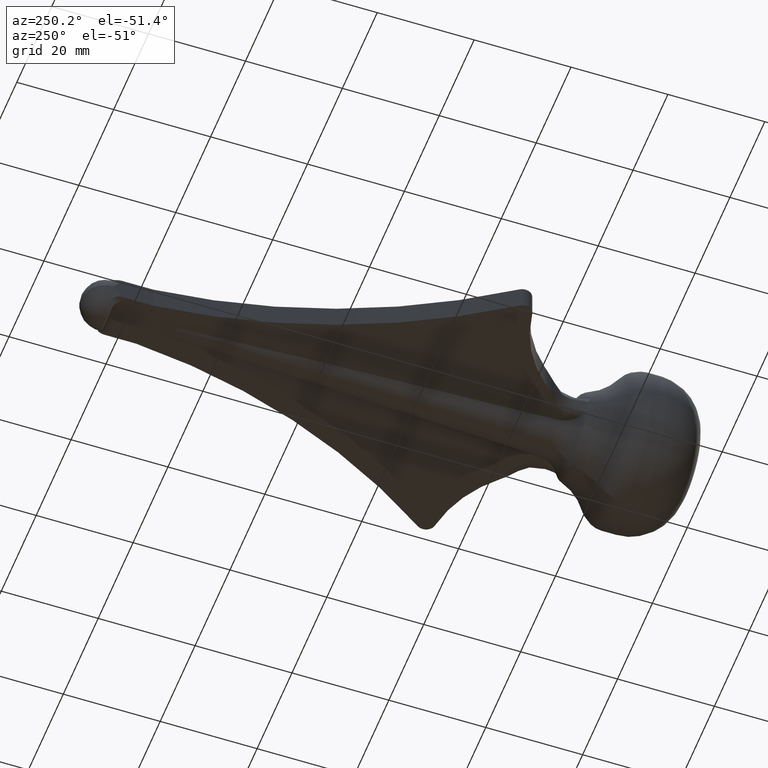
[diagram: clean part render]
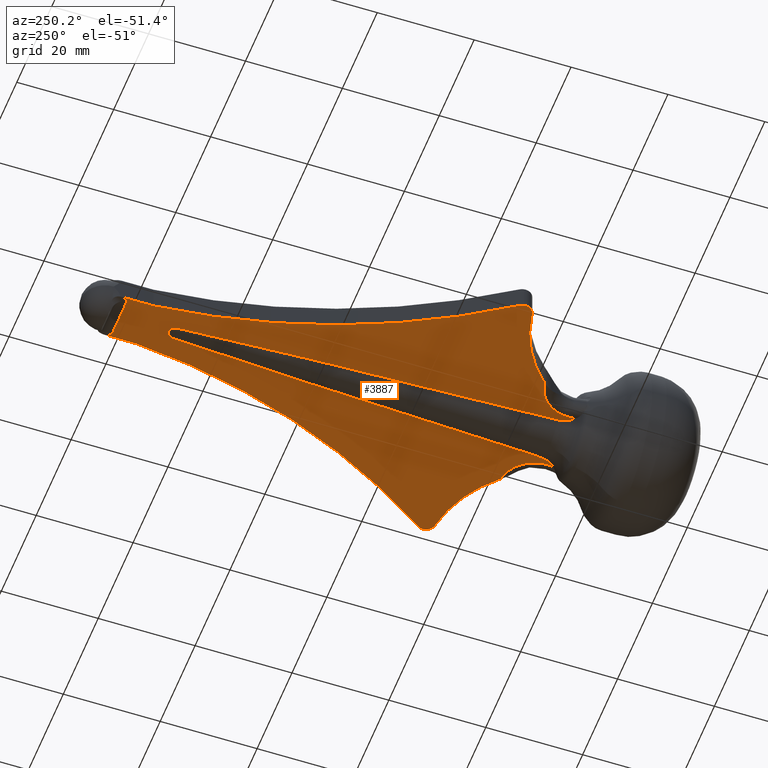
[diagram: same view with one face highlighted and labeled with its STEP entity id]
A machine part, auxiliary view. The second image highlights one B-rep face of the part: STEP entity #3887.
In plain terms, the highlighted planar face has unit normal (-0, 0, -1).
Its self-contained STEP definition (entity closure, byte-faithful):
#80 = CARTESIAN_POINT ( 'NONE',  ( -6.332124310859347500, 25.65280714459569800, -2.500000000000000000 ) ) ;
#113 = CIRCLE ( 'NONE', #5480, 26.00000000000000400 ) ;
#188 = LINE ( 'NONE', #8180, #2639 ) ;
#207 = CARTESIAN_POINT ( 'NONE',  ( -8.215327410691484600, 31.73765206968450800, -2.500000000000000400 ) ) ;
#211 = CARTESIAN_POINT ( 'NONE',  ( 8.538557114866950600, 32.06161470011271300, -2.500000000000000400 ) ) ;
#277 = CARTESIAN_POINT ( 'NONE',  ( 2.129360400867848800, 92.86874431668863400, -2.500000000000000000 ) ) ;
#289 = PLANE ( 'NONE',  #3214 ) ;
#306 = CARTESIAN_POINT ( 'NONE',  ( -0.6065527435157885800, 107.0000000000000600, -2.500000000000000000 ) ) ;
#307 = AXIS2_PLACEMENT_3D ( 'NONE', #5896, #454, #6804 ) ;
#327 = ORIENTED_EDGE ( 'NONE', *, *, #5783, .T. ) ;
#443 = ORIENTED_EDGE ( 'NONE', *, *, #4307, .T. ) ;
#454 = DIRECTION ( 'NONE',  ( 0.0000000000000000000, 0.0000000000000000000, 1.000000000000000000 ) ) ;
#498 = CARTESIAN_POINT ( 'NONE',  ( 0.9532144137066169700, 106.6340236943384700, -2.500000000000000000 ) ) ;
#522 = CARTESIAN_POINT ( 'NONE',  ( 5.225666838430490700, 27.09221010320965200, -2.500000000000000000 ) ) ;
#571 = CARTESIAN_POINT ( 'NONE',  ( 1.330671273816803600, 105.7173144408542200, -2.500000000000000000 ) ) ;
#591 = VERTEX_POINT ( 'NONE', #6103 ) ;
#646 = CARTESIAN_POINT ( 'NONE',  ( 5.000000000000000000, 118.2635083268962700, -2.500000000000000000 ) ) ;
#665 = CARTESIAN_POINT ( 'NONE',  ( -6.281358322798515900, 26.25225451194809500, -2.500000000000000000 ) ) ;
#687 = B_SPLINE_CURVE_WITH_KNOTS ( 'NONE', 3,
 ( #1793, #7216, #1869, #8208, #2811, #9042, #3722, #9862, #4646, #10686 ),
 .UNSPECIFIED., .F., .F.,
 ( 4, 2, 2, 2, 4 ),
 ( 0.0000000000000000000, 0.0008948846907809848000, 0.001789769381561969600, 0.002684654072342954400, 0.003579538763123939200 ),
 .UNSPECIFIED. ) ;
#731 = CARTESIAN_POINT ( 'NONE',  ( 31.75245864079045400, 16.33068541574359500, -2.500000000000000000 ) ) ;
#763 = CARTESIAN_POINT ( 'NONE',  ( -0.7927633571611382200, 106.8291361047447900, -2.500000000000000000 ) ) ;
#894 = DIRECTION ( 'NONE',  ( 0.0000000000000000000, 0.0000000000000000000, 1.000000000000000000 ) ) ;
#914 = EDGE_CURVE ( 'NONE', #7551, #10993, #1625, .T. ) ;
#922 = CARTESIAN_POINT ( 'NONE',  ( -6.370237441194999100, 25.35261430758427500, -2.500000000000000000 ) ) ;
#995 = CARTESIAN_POINT ( 'NONE',  ( -6.370237441194999100, 25.35261430758427500, -2.500000000000000000 ) ) ;
#1073 = DIRECTION ( 'NONE',  ( 0.0000000000000000000, 0.0000000000000000000, 1.000000000000000000 ) ) ;
#1111 = CARTESIAN_POINT ( 'NONE',  ( -9.070231445551900900, 32.50191980069816100, -2.500000000000000000 ) ) ;
#1154 = DIRECTION ( 'NONE',  ( -1.000000000000000000, -0.0000000000000000000, -0.0000000000000000000 ) ) ;
#1177 = CARTESIAN_POINT ( 'NONE',  ( 1.569177608762222200, 102.5082300580223100, -2.499999999999999100 ) ) ;
#1189 = DIRECTION ( 'NONE',  ( -0.0000000000000000000, 0.0000000000000000000, -1.000000000000000000 ) ) ;
#1220 = VERTEX_POINT ( 'NONE', #10289 ) ;
#1227 = B_SPLINE_CURVE_WITH_KNOTS ( 'NONE', 3,
 ( #7986, #8732, #8743, #7970, #7957, #8596, #8585, #8561, #8529, #8491 ),
 .UNSPECIFIED., .F., .F.,
 ( 4, 2, 2, 2, 4 ),
 ( 0.1646167444301771500, 0.1742068435375671000, 0.1837969426449570500, 0.2029771408597369800, 0.2413375372892968000 ),
 .UNSPECIFIED. ) ;
#1249 = B_SPLINE_CURVE_WITH_KNOTS ( 'NONE', 3,
 ( #5288, #763, #8006, #2615, #8869, #3519, #9694, #4449 ),
 .UNSPECIFIED., .F., .F.,
 ( 4, 2, 2, 4 ),
 ( -8.962579036644471900E-006, 0.0007492061159276327100, 0.001128290463409770700, 0.001507374810891909300 ),
 .UNSPECIFIED. ) ;
#1266 = CARTESIAN_POINT ( 'NONE',  ( 7.630893039179361500, 31.02927913251785700, -2.500000000000000000 ) ) ;
#1328 = VERTEX_POINT ( 'NONE', #10156 ) ;
#1371 = CARTESIAN_POINT ( 'NONE',  ( 0.6065527435157884700, 107.0000000000000600, -2.500000000000000000 ) ) ;
#1408 = CARTESIAN_POINT ( 'NONE',  ( 0.6987289277843280500, 106.9154205540190200, -2.500000000000000000 ) ) ;
#1427 = CARTESIAN_POINT ( 'NONE',  ( 4.983474586103638700, 27.95847719061229600, -2.500000000000000000 ) ) ;
#1453 = CARTESIAN_POINT ( 'NONE',  ( 6.281358322798517700, 26.25225451194809500, -2.500000000000000000 ) ) ;
#1531 = CARTESIAN_POINT ( 'NONE',  ( 0.0000000000000000000, 120.2000000000000000, -2.500000000000000000 ) ) ;
#1540 = CIRCLE ( 'NONE', #9784, 134.6797842850864700 ) ;
#1544 = VERTEX_POINT ( 'NONE', #8967 ) ;
#1597 = CIRCLE ( 'NONE', #7135, 26.00000000000000400 ) ;
#1611 = EDGE_CURVE ( 'NONE', #3009, #7323, #1227, .T. ) ;
#1612 = EDGE_CURVE ( 'NONE', #1544, #10993, #8672, .T. ) ;
#1614 = CIRCLE ( 'NONE', #6923, 5.361902647381809200 ) ;
#1622 = ORIENTED_EDGE ( 'NONE', *, *, #3696, .T. ) ;
#1625 = CIRCLE ( 'NONE', #3620, 2.000000000000026200 ) ;
#1645 = DIRECTION ( 'NONE',  ( 1.000000000000000000, 0.0000000000000000000, 0.0000000000000000000 ) ) ;
#1793 = CARTESIAN_POINT ( 'NONE',  ( -4.928568551160204000, 28.56293012340829000, -2.500000000000000000 ) ) ;
#1818 = DIRECTION ( 'NONE',  ( -1.057758217059028900E-016, -1.000000000000000000, 0.0000000000000000000 ) ) ;
#1839 = AXIS2_PLACEMENT_3D ( 'NONE', #6340, #894, #7242 ) ;
#1840 = CARTESIAN_POINT ( 'NONE',  ( -6.260372654401300500, 27.17393342071864000, -2.499999999999999600 ) ) ;
#1869 = CARTESIAN_POINT ( 'NONE',  ( -4.982672710096673000, 27.96408312401186400, -2.500000000000000400 ) ) ;
#1891 = ORIENTED_EDGE ( 'NONE', *, *, #3838, .T. ) ;
#1922 = CARTESIAN_POINT ( 'NONE',  ( -6.302561753250834000, 25.95268486088754800, -2.500000000000000000 ) ) ;
#2045 = CARTESIAN_POINT ( 'NONE',  ( -9.638519150057733900, 32.90100792267363500, -2.499999999999999600 ) ) ;
#2082 = CARTESIAN_POINT ( 'NONE',  ( 4.928568551160204000, 28.56293012340829000, -2.500000000000000000 ) ) ;
#2157 = AXIS2_PLACEMENT_3D ( 'NONE', #8391, #8383, #8360 ) ;
#2204 = CARTESIAN_POINT ( 'NONE',  ( 6.929805277812873100, 29.83665226423488500, -2.499999999999999600 ) ) ;
#2288 = CARTESIAN_POINT ( 'NONE',  ( -31.75245864079045400, 16.33068541574359500, -2.500000000000000000 ) ) ;
#2304 = EDGE_CURVE ( 'NONE', #4250, #9102, #11178, .T. ) ;
#2308 = CARTESIAN_POINT ( 'NONE',  ( 1.295279880000380000, 105.9668175679883900, -2.499999999999999100 ) ) ;
#2331 = CARTESIAN_POINT ( 'NONE',  ( 6.160589640754883700, 25.56479582156226400, -2.499999999999999600 ) ) ;
#2369 = CARTESIAN_POINT ( 'NONE',  ( 4.928568551160204000, 28.56293012340829000, -2.500000000000000000 ) ) ;
#2410 = ORIENTED_EDGE ( 'NONE', *, *, #11101, .T. ) ;
#2414 = EDGE_CURVE ( 'NONE', #4235, #8254, #1614, .T. ) ;
#2469 = ORIENTED_EDGE ( 'NONE', *, *, #8849, .F. ) ;
#2471 = DIRECTION ( 'NONE',  ( -1.000000000000000000, 0.0000000000000000000, 0.0000000000000000000 ) ) ;
#2615 = CARTESIAN_POINT ( 'NONE',  ( -1.159133566433652400, 106.3194813006999900, -2.499999999999999600 ) ) ;
#2639 = VECTOR ( 'NONE', #2790, 1000.000000000000000 ) ;
#2654 = EDGE_CURVE ( 'NONE', #8517, #5427, #11325, .T. ) ;
#2709 = EDGE_CURVE ( 'NONE', #8669, #2827, #10859, .T. ) ;
#2790 = DIRECTION ( 'NONE',  ( 1.057758217059028900E-016, -1.000000000000000000, 0.0000000000000000000 ) ) ;
#2811 = CARTESIAN_POINT ( 'NONE',  ( -5.223297721913593400, 27.09784092470094000, -2.500000000000000000 ) ) ;
#2827 = VERTEX_POINT ( 'NONE', #665 ) ;
#2941 = CARTESIAN_POINT ( 'NONE',  ( -6.380134862032538700, 28.08176899091009200, -2.500000000000000000 ) ) ;
#2942 = CARTESIAN_POINT ( 'NONE',  ( 11.73855710430954400, 33.81632774207560700, -2.500000000000000000 ) ) ;
#2972 = CARTESIAN_POINT ( 'NONE',  ( -10.43694916120694300, 33.35085489305667700, -2.500000000000000400 ) ) ;
#3009 = VERTEX_POINT ( 'NONE', #5520 ) ;
#3070 = B_SPLINE_CURVE_WITH_KNOTS ( 'NONE', 3,
 ( #5579, #6492, #2942, #9165, #3863, #9986, #4784, #10810, #5664, #211, #6574, #1266, #7606, #2204, #8510, #3115, #9330, #4053, #10153, #4951, #10975, #5840 ),
 .UNSPECIFIED., .F., .F.,
 ( 4, 2, 2, 2, 2, 2, 2, 2, 2, 2, 4 ),
 ( 0.0000000000000000000, 0.001387412077368245500, 0.002774824154736490900, 0.003468530193420620700, 0.004162236232104750900, 0.005549648309473014800, 0.006937060386841277000, 0.008324472464209540000, 0.009018178502893676300, 0.009711884541577812600, 0.01109929661894607600 ),
 .UNSPECIFIED. ) ;
#3082 = ORIENTED_EDGE ( 'NONE', *, *, #5428, .F. ) ;
#3092 = ORIENTED_EDGE ( 'NONE', *, *, #9119, .T. ) ;
#3115 = CARTESIAN_POINT ( 'NONE',  ( 6.538420840265986000, 28.75699036543280600, -2.500000000000000000 ) ) ;
#3171 = ORIENTED_EDGE ( 'NONE', *, *, #2654, .T. ) ;
#3201 = DIRECTION ( 'NONE',  ( -1.000000000000000000, 0.0000000000000000000, 0.0000000000000000000 ) ) ;
#3214 = AXIS2_PLACEMENT_3D ( 'NONE', #5741, #1189, #7537 ) ;
#3216 = CARTESIAN_POINT ( 'NONE',  ( 1.321235818434585400, 105.8442677668696600, -2.500000000002454900 ) ) ;
#3293 = CARTESIAN_POINT ( 'NONE',  ( 6.332124310859343000, 25.65280714459570200, -2.500000000000000000 ) ) ;
#3449 = ORIENTED_EDGE ( 'NONE', *, *, #2304, .T. ) ;
#3519 = CARTESIAN_POINT ( 'NONE',  ( -1.295273165790327800, 105.9667875739345100, -2.500000000000000900 ) ) ;
#3620 = AXIS2_PLACEMENT_3D ( 'NONE', #4872, #4852, #4822 ) ;
#3649 = DIRECTION ( 'NONE',  ( 0.0000000000000000000, 0.0000000000000000000, 1.000000000000000000 ) ) ;
#3690 = VERTEX_POINT ( 'NONE', #11434 ) ;
#3696 = EDGE_CURVE ( 'NONE', #5427, #10575, #5827, .T. ) ;
#3722 = CARTESIAN_POINT ( 'NONE',  ( -5.622495348066029100, 26.29116110328564200, -2.500000000000000000 ) ) ;
#3838 = EDGE_CURVE ( 'NONE', #9102, #7966, #5269, .T. ) ;
#3860 = CARTESIAN_POINT ( 'NONE',  ( -6.538420840265984200, 28.75699036543280900, -2.500000000000000400 ) ) ;
#3863 = CARTESIAN_POINT ( 'NONE',  ( 10.43694916120694500, 33.35085489305667000, -2.500000000000000000 ) ) ;
#3887 = ADVANCED_FACE ( 'NONE', ( #4740 ), #289, .T. ) ;
#3898 = CARTESIAN_POINT ( 'NONE',  ( -11.73855710430953700, 33.81632774207561500, -2.500000000000000900 ) ) ;
#3916 = CARTESIAN_POINT ( 'NONE',  ( -1.383183320557414200, 107.0000000000000600, -2.500000000000000000 ) ) ;
#3998 = ORIENTED_EDGE ( 'NONE', *, *, #5660, .F. ) ;
#4053 = CARTESIAN_POINT ( 'NONE',  ( 6.380134862032539500, 28.08176899091009600, -2.500000000000000400 ) ) ;
#4099 = VERTEX_POINT ( 'NONE', #8590 ) ;
#4143 = DIRECTION ( 'NONE',  ( 1.000000000000000000, -0.0000000000000000000, -0.0000000000000000000 ) ) ;
#4172 = CARTESIAN_POINT ( 'NONE',  ( 6.370237441195419200, 25.35261430758424000, -2.500000000000000000 ) ) ;
#4235 = VERTEX_POINT ( 'NONE', #11127 ) ;
#4245 = ORIENTED_EDGE ( 'NONE', *, *, #5445, .T. ) ;
#4250 = VERTEX_POINT ( 'NONE', #571 ) ;
#4307 = EDGE_CURVE ( 'NONE', #2827, #4099, #7420, .T. ) ;
#4449 = CARTESIAN_POINT ( 'NONE',  ( -1.330671273816739400, 105.7173144408550900, -2.500000000000000000 ) ) ;
#4480 = ORIENTED_EDGE ( 'NONE', *, *, #7213, .T. ) ;
#4553 = CARTESIAN_POINT ( 'NONE',  ( 27.65781749681965000, 42.00623631347705400, -2.500000000000000000 ) ) ;
#4646 = CARTESIAN_POINT ( 'NONE',  ( -6.159596322637272100, 25.56580114449731100, -2.500000000000000000 ) ) ;
#4740 = FACE_OUTER_BOUND ( 'NONE', #6577, .T. ) ;
#4780 = CARTESIAN_POINT ( 'NONE',  ( -6.929805277812874900, 29.83665226423488500, -2.500000000000000400 ) ) ;
#4784 = CARTESIAN_POINT ( 'NONE',  ( 9.638519150057742700, 32.90100792267364900, -2.500000000000000000 ) ) ;
#4811 = CARTESIAN_POINT ( 'NONE',  ( -12.65298215000056500, 33.97183044030943900, -2.500000000000000000 ) ) ;
#4822 = DIRECTION ( 'NONE',  ( -1.000000000000000000, 0.0000000000000000000, 0.0000000000000000000 ) ) ;
#4851 = CARTESIAN_POINT ( 'NONE',  ( 3.068308221061435400, 73.58147783943989900, -2.499999999999999100 ) ) ;
#4852 = DIRECTION ( 'NONE',  ( -0.0000000000000000000, -0.0000000000000000000, -1.000000000000000000 ) ) ;
#4872 = CARTESIAN_POINT ( 'NONE',  ( -27.49999999999999600, 44.00000000000000000, -2.500000000000000000 ) ) ;
#4904 = ORIENTED_EDGE ( 'NONE', *, *, #1612, .F. ) ;
#4951 = CARTESIAN_POINT ( 'NONE',  ( 6.260372654401299600, 27.17393342071863700, -2.500000000000000400 ) ) ;
#5042 = CARTESIAN_POINT ( 'NONE',  ( 1.214600312371360900, 106.2042491594227400, -2.500000000000000000 ) ) ;
#5061 = CARTESIAN_POINT ( 'NONE',  ( 5.969001875462324400, 25.79379336170176600, -2.500000000000000400 ) ) ;
#5269 = LINE ( 'NONE', #3916, #9655 ) ;
#5288 = CARTESIAN_POINT ( 'NONE',  ( -0.6065527435157885800, 107.0000000000000600, -2.500000000000000000 ) ) ;
#5298 = ORIENTED_EDGE ( 'NONE', *, *, #2709, .T. ) ;
#5427 = VERTEX_POINT ( 'NONE', #646 ) ;
#5428 = EDGE_CURVE ( 'NONE', #1220, #9820, #5873, .T. ) ;
#5435 = CARTESIAN_POINT ( 'NONE',  ( 5.000000000000000000, 120.2000000000000000, -2.500000000000000000 ) ) ;
#5445 = EDGE_CURVE ( 'NONE', #8254, #8517, #10192, .T. ) ;
#5480 = AXIS2_PLACEMENT_3D ( 'NONE', #2288, #8584, #3201 ) ;
#5520 = CARTESIAN_POINT ( 'NONE',  ( -1.330671273816739400, 105.7173144408550900, -2.500000000000000000 ) ) ;
#5579 = CARTESIAN_POINT ( 'NONE',  ( 12.65298215000057200, 33.97183044030945400, -2.500000000000000000 ) ) ;
#5593 = ORIENTED_EDGE ( 'NONE', *, *, #914, .T. ) ;
#5660 = EDGE_CURVE ( 'NONE', #4235, #1544, #188, .T. ) ;
#5661 = CARTESIAN_POINT ( 'NONE',  ( -7.630893039179353500, 31.02927913251784300, -2.500000000000000000 ) ) ;
#5664 = CARTESIAN_POINT ( 'NONE',  ( 9.070231445551900900, 32.50191980069815400, -2.499999999999999600 ) ) ;
#5730 = CARTESIAN_POINT ( 'NONE',  ( 2.296845112463824700, 89.65469678926223200, -2.500000000000000000 ) ) ;
#5741 = CARTESIAN_POINT ( 'NONE',  ( -139.2548069504312900, 122.6907018375717500, -2.500000000000000000 ) ) ;
#5783 = EDGE_CURVE ( 'NONE', #3690, #1328, #3070, .T. ) ;
#5827 = LINE ( 'NONE', #5435, #10412 ) ;
#5840 = CARTESIAN_POINT ( 'NONE',  ( 6.281358322798517700, 26.25225451194809500, -2.500000000000000000 ) ) ;
#5873 = CIRCLE ( 'NONE', #307, 2.000000000000026200 ) ;
#5896 = CARTESIAN_POINT ( 'NONE',  ( 27.49999999999999600, 44.00000000000000000, -2.500000000000000000 ) ) ;
#5944 = CARTESIAN_POINT ( 'NONE',  ( 1.028410969520550100, 106.5339155207578000, -2.500000000000000000 ) ) ;
#5965 = CARTESIAN_POINT ( 'NONE',  ( 5.473767002104549000, 26.55045919491011800, -2.500000000000000000 ) ) ;
#6103 = CARTESIAN_POINT ( 'NONE',  ( 6.370237441195419200, 25.35261430758424000, -2.500000000000000000 ) ) ;
#6301 = B_SPLINE_CURVE_WITH_KNOTS ( 'NONE', 3,
 ( #1453, #6892, #3293, #9495 ),
 .UNSPECIFIED., .F., .F.,
 ( 4, 4 ),
 ( 0.03337064164700399200, 0.03427777103587671000 ),
 .UNSPECIFIED. ) ;
#6340 = CARTESIAN_POINT ( 'NONE',  ( 0.0000000000000000000, 120.2000000000000000, -2.500000000000000000 ) ) ;
#6366 = CARTESIAN_POINT ( 'NONE',  ( -6.281358322798515900, 26.25225451194809500, -2.500000000000000000 ) ) ;
#6489 = EDGE_CURVE ( 'NONE', #7362, #3690, #1597, .T. ) ;
#6492 = CARTESIAN_POINT ( 'NONE',  ( 12.19216192841044800, 33.91604921190925400, -2.500000000000000000 ) ) ;
#6532 = CARTESIAN_POINT ( 'NONE',  ( 27.49999999999999600, 44.00000000000000000, -2.500000000000000000 ) ) ;
#6570 = CARTESIAN_POINT ( 'NONE',  ( -8.538557114866950600, 32.06161470011270600, -2.500000000000000400 ) ) ;
#6572 = CARTESIAN_POINT ( 'NONE',  ( 4.424873845944095900, 41.42658154999881500, -2.499999999999999600 ) ) ;
#6574 = CARTESIAN_POINT ( 'NONE',  ( 8.215327410691490000, 31.73765206968451500, -2.500000000000000000 ) ) ;
#6577 = EDGE_LOOP ( 'NONE', ( #8530, #327, #3092, #10825, #7191, #3449, #1891, #8326, #7963, #2410, #5298, #443, #11284, #5593, #4904, #3998, #11211, #4245, #3171, #1622, #4480, #3082, #2469 ) ) ;
#6645 = CARTESIAN_POINT ( 'NONE',  ( 1.764076072251363800, 99.29546918360152600, -2.500000000000000000 ) ) ;
#6804 = DIRECTION ( 'NONE',  ( 1.000000000000000000, 0.0000000000000000000, 0.0000000000000000000 ) ) ;
#6849 = CARTESIAN_POINT ( 'NONE',  ( 0.7888134284096221000, 106.8244281816535400, -2.500000000000000000 ) ) ;
#6875 = CARTESIAN_POINT ( 'NONE',  ( 5.126669075745709000, 27.37342601067177800, -2.500000000000000000 ) ) ;
#6892 = CARTESIAN_POINT ( 'NONE',  ( 6.302561753250834900, 25.95268486088754000, -2.500000000000000000 ) ) ;
#6923 = AXIS2_PLACEMENT_3D ( 'NONE', #1531, #7861, #2471 ) ;
#7012 = B_SPLINE_CURVE_WITH_KNOTS ( 'NONE', 3,
 ( #2082, #6572, #10048, #4851, #10872, #5730, #277, #6645, #1177, #7528 ),
 .UNSPECIFIED., .F., .F.,
 ( 4, 2, 2, 2, 4 ),
 ( 0.06808949105091094400, 0.1067100199659009900, 0.1260202844233959700, 0.1356754166521434400, 0.1453305488808909200 ),
 .UNSPECIFIED. ) ;
#7077 = DIRECTION ( 'NONE',  ( 0.0000000000000000000, 0.0000000000000000000, 1.000000000000000000 ) ) ;
#7135 = AXIS2_PLACEMENT_3D ( 'NONE', #731, #7077, #1645 ) ;
#7191 = ORIENTED_EDGE ( 'NONE', *, *, #8917, .T. ) ;
#7213 = EDGE_CURVE ( 'NONE', #10575, #9820, #1540, .T. ) ;
#7216 = CARTESIAN_POINT ( 'NONE',  ( -4.940422964059703000, 28.26018515939157500, -2.499999999999999600 ) ) ;
#7242 = DIRECTION ( 'NONE',  ( -1.000000000000000000, 0.0000000000000000000, 0.0000000000000000000 ) ) ;
#7263 = CARTESIAN_POINT ( 'NONE',  ( -6.248585168539683800, 26.71528536007193100, -2.500000000000000400 ) ) ;
#7323 = VERTEX_POINT ( 'NONE', #9672 ) ;
#7362 = VERTEX_POINT ( 'NONE', #4553 ) ;
#7420 = B_SPLINE_CURVE_WITH_KNOTS ( 'NONE', 3,
 ( #6366, #7263, #1840, #8173, #2941, #9164, #3860, #9984, #4780, #10808, #5661, #207, #6570, #1111, #7453, #2045, #8375, #2972, #9202, #3898, #10019, #4811 ),
 .UNSPECIFIED., .F., .F.,
 ( 4, 2, 2, 2, 2, 2, 2, 2, 2, 2, 4 ),
 ( 0.0000000000000000000, 0.001372798157609363900, 0.002059197236414050700, 0.002745596315218738200, 0.004118394472828110900, 0.005491192630437484100, 0.006863990788046840000, 0.007550389866851517900, 0.008236788945656195800, 0.009609587103265536000, 0.01098238526087487600 ),
 .UNSPECIFIED. ) ;
#7421 = DIRECTION ( 'NONE',  ( 1.000000000000000000, 0.0000000000000000000, 0.0000000000000000000 ) ) ;
#7453 = CARTESIAN_POINT ( 'NONE',  ( -9.256381380318091000, 32.64170463776567000, -2.500000000000000900 ) ) ;
#7470 = EDGE_CURVE ( 'NONE', #7551, #4099, #113, .T. ) ;
#7528 = CARTESIAN_POINT ( 'NONE',  ( 1.330671273816803600, 105.7173144408542200, -2.500000000000000000 ) ) ;
#7537 = DIRECTION ( 'NONE',  ( -1.000000000000000000, 0.0000000000000000000, 0.0000000000000000000 ) ) ;
#7551 = VERTEX_POINT ( 'NONE', #11046 ) ;
#7580 = EDGE_CURVE ( 'NONE', #591, #10561, #10026, .T. ) ;
#7606 = CARTESIAN_POINT ( 'NONE',  ( 7.368927765909408100, 30.64177208497266500, -2.500000000000000000 ) ) ;
#7746 = CARTESIAN_POINT ( 'NONE',  ( 0.6065527435157884700, 107.0000000000000600, -2.500000000000000000 ) ) ;
#7768 = CARTESIAN_POINT ( 'NONE',  ( 4.940432093761986100, 28.25995199968878100, -2.500000000000000000 ) ) ;
#7861 = DIRECTION ( 'NONE',  ( 0.0000000000000000000, 0.0000000000000000000, 1.000000000000000000 ) ) ;
#7957 = CARTESIAN_POINT ( 'NONE',  ( -2.296831674157719000, 89.65496053653252800, -2.500000000000000000 ) ) ;
#7963 = ORIENTED_EDGE ( 'NONE', *, *, #1611, .T. ) ;
#7966 = VERTEX_POINT ( 'NONE', #306 ) ;
#7970 = CARTESIAN_POINT ( 'NONE',  ( -2.129346882812048800, 92.86898118978875500, -2.499999999999999600 ) ) ;
#7986 = CARTESIAN_POINT ( 'NONE',  ( -1.330671273816739400, 105.7173144408550900, -2.500000000000000000 ) ) ;
#7988 = VECTOR ( 'NONE', #4143, 1000.000000000000000 ) ;
#8006 = CARTESIAN_POINT ( 'NONE',  ( -0.9631077705133893600, 106.6410759380929500, -2.500000000000000000 ) ) ;
#8017 = CARTESIAN_POINT ( 'NONE',  ( 4.928568551160204000, 28.56293012340829000, -2.500000000000000000 ) ) ;
#8173 = CARTESIAN_POINT ( 'NONE',  ( -6.342128938752319200, 27.85560337261846800, -2.500000000000000000 ) ) ;
#8180 = CARTESIAN_POINT ( 'NONE',  ( -5.000000000000000000, 120.2000000000000000, -2.500000000000000000 ) ) ;
#8208 = CARTESIAN_POINT ( 'NONE',  ( -5.123481304615879100, 27.38418546053753400, -2.500000000000000000 ) ) ;
#8254 = VERTEX_POINT ( 'NONE', #10982 ) ;
#8256 = CARTESIAN_POINT ( 'NONE',  ( -6.281358322798515900, 26.25225451194809500, -2.500000000000000000 ) ) ;
#8326 = ORIENTED_EDGE ( 'NONE', *, *, #10957, .T. ) ;
#8360 = DIRECTION ( 'NONE',  ( -1.000000000000000000, 0.0000000000000000000, 0.0000000000000000000 ) ) ;
#8375 = CARTESIAN_POINT ( 'NONE',  ( -9.834519537124288400, 33.02073149131852900, -2.499999999999999600 ) ) ;
#8383 = DIRECTION ( 'NONE',  ( -0.0000000000000000000, -0.0000000000000000000, -1.000000000000000000 ) ) ;
#8391 = CARTESIAN_POINT ( 'NONE',  ( -139.2548069504312900, 122.6907018375717500, -2.500000000000000000 ) ) ;
#8491 = CARTESIAN_POINT ( 'NONE',  ( -4.928568551160204000, 28.56293012340829000, -2.500000000000000000 ) ) ;
#8510 = CARTESIAN_POINT ( 'NONE',  ( 6.749357949905484800, 29.41590042472006100, -2.499999999999999600 ) ) ;
#8517 = VERTEX_POINT ( 'NONE', #9736 ) ;
#8529 = CARTESIAN_POINT ( 'NONE',  ( -4.424877613599830900, 41.42648532939220000, -2.499999999999999600 ) ) ;
#8530 = ORIENTED_EDGE ( 'NONE', *, *, #6489, .T. ) ;
#8561 = CARTESIAN_POINT ( 'NONE',  ( -3.909043776192116800, 54.28954123123273200, -2.500000000000000000 ) ) ;
#8584 = DIRECTION ( 'NONE',  ( -0.0000000000000000000, -0.0000000000000000000, -1.000000000000000000 ) ) ;
#8585 = CARTESIAN_POINT ( 'NONE',  ( -3.068313073343853100, 73.58137093421478900, -2.500000000000000400 ) ) ;
#8590 = CARTESIAN_POINT ( 'NONE',  ( -12.65298215000056500, 33.97183044030943900, -2.500000000000000000 ) ) ;
#8596 = CARTESIAN_POINT ( 'NONE',  ( -2.777262385360014900, 80.01157285010732800, -2.500000000000000000 ) ) ;
#8614 = AXIS2_PLACEMENT_3D ( 'NONE', #6532, #1073, #7421 ) ;
#8669 = VERTEX_POINT ( 'NONE', #922 ) ;
#8672 = CIRCLE ( 'NONE', #2157, 134.6797842850864700 ) ;
#8732 = CARTESIAN_POINT ( 'NONE',  ( -1.569226523540618900, 102.5075719134432700, -2.499999999999999600 ) ) ;
#8743 = CARTESIAN_POINT ( 'NONE',  ( -1.764091459563191800, 99.29519942325281100, -2.500000000000000400 ) ) ;
#8849 = EDGE_CURVE ( 'NONE', #7362, #1220, #9619, .T. ) ;
#8869 = CARTESIAN_POINT ( 'NONE',  ( -1.214736087351144600, 106.2038992613618100, -2.500000000000000000 ) ) ;
#8917 = EDGE_CURVE ( 'NONE', #10561, #4250, #7012, .T. ) ;
#8967 = CARTESIAN_POINT ( 'NONE',  ( -5.000000000000032000, 112.0000000000000100, -2.500000000000000000 ) ) ;
#8977 = CARTESIAN_POINT ( 'NONE',  ( 139.2548069504312900, 122.6907018375717500, -2.500000000000000000 ) ) ;
#9042 = CARTESIAN_POINT ( 'NONE',  ( -5.473582769404222500, 26.55040850204484600, -2.500000000000000000 ) ) ;
#9102 = VERTEX_POINT ( 'NONE', #1371 ) ;
#9119 = EDGE_CURVE ( 'NONE', #1328, #591, #6301, .T. ) ;
#9164 = CARTESIAN_POINT ( 'NONE',  ( -6.478077394696306600, 28.53194322220438700, -2.500000000000000400 ) ) ;
#9165 = CARTESIAN_POINT ( 'NONE',  ( 10.85767656826134200, 33.53246972681048300, -2.500000000000000000 ) ) ;
#9202 = CARTESIAN_POINT ( 'NONE',  ( -10.85767656826133300, 33.53246972681046900, -2.500000000000000000 ) ) ;
#9330 = CARTESIAN_POINT ( 'NONE',  ( 6.478077394696305700, 28.53194322220439000, -2.500000000000000000 ) ) ;
#9416 = CARTESIAN_POINT ( 'NONE',  ( 4.330127018922197200, 117.2000000000000000, -2.500000000000000000 ) ) ;
#9495 = CARTESIAN_POINT ( 'NONE',  ( 6.370237441195419200, 25.35261430758424000, -2.500000000000000000 ) ) ;
#9619 = CIRCLE ( 'NONE', #8614, 2.000000000000026200 ) ;
#9655 = VECTOR ( 'NONE', #1154, 1000.000000000000000 ) ;
#9672 = CARTESIAN_POINT ( 'NONE',  ( -4.928568551160204000, 28.56293012340829000, -2.500000000000000000 ) ) ;
#9694 = CARTESIAN_POINT ( 'NONE',  ( -1.321232449426724900, 105.8443130966412700, -2.500000000001181300 ) ) ;
#9736 = CARTESIAN_POINT ( 'NONE',  ( 4.444097208657799700, 117.2000000000000000, -2.500000000000000000 ) ) ;
#9774 = CARTESIAN_POINT ( 'NONE',  ( 5.000000000000032000, 112.0000000000000100, -2.500000000000000000 ) ) ;
#9784 = AXIS2_PLACEMENT_3D ( 'NONE', #8977, #3649, #9796 ) ;
#9796 = DIRECTION ( 'NONE',  ( 1.000000000000000000, 0.0000000000000000000, 0.0000000000000000000 ) ) ;
#9820 = VERTEX_POINT ( 'NONE', #11427 ) ;
#9862 = CARTESIAN_POINT ( 'NONE',  ( -5.964561448149548400, 25.79959573066382500, -2.500000000000000000 ) ) ;
#9984 = CARTESIAN_POINT ( 'NONE',  ( -6.749357949905485700, 29.41590042472005700, -2.500000000000000900 ) ) ;
#9986 = CARTESIAN_POINT ( 'NONE',  ( 9.834519537124291900, 33.02073149131853600, -2.500000000000000000 ) ) ;
#10019 = CARTESIAN_POINT ( 'NONE',  ( -12.19216192841043500, 33.91604921190924700, -2.500000000000000000 ) ) ;
#10026 = B_SPLINE_CURVE_WITH_KNOTS ( 'NONE', 3,
 ( #4172, #2331, #5061, #11085, #5965, #522, #6875, #1427, #7768, #2369 ),
 .UNSPECIFIED., .F., .F.,
 ( 4, 2, 2, 2, 4 ),
 ( 0.002591694456195163500, 0.003486636021339475700, 0.004381577586483788000, 0.005276519151628099300, 0.006171460716772411500 ),
 .UNSPECIFIED. ) ;
#10048 = CARTESIAN_POINT ( 'NONE',  ( 3.909034111414361900, 54.28977187930937700, -2.499999999999999600 ) ) ;
#10153 = CARTESIAN_POINT ( 'NONE',  ( 6.342128938752315600, 27.85560337261846100, -2.499999999999999600 ) ) ;
#10156 = CARTESIAN_POINT ( 'NONE',  ( 6.281358322798517700, 26.25225451194809500, -2.500000000000000000 ) ) ;
#10192 = LINE ( 'NONE', #9416, #7988 ) ;
#10232 = CARTESIAN_POINT ( 'NONE',  ( 1.330671273816803600, 105.7173144408542200, -2.500000000000000000 ) ) ;
#10289 = CARTESIAN_POINT ( 'NONE',  ( 29.50000000000002100, 44.00000000000000000, -2.500000000000000000 ) ) ;
#10412 = VECTOR ( 'NONE', #1818, 1000.000000000000000 ) ;
#10561 = VERTEX_POINT ( 'NONE', #8017 ) ;
#10575 = VERTEX_POINT ( 'NONE', #9774 ) ;
#10686 = CARTESIAN_POINT ( 'NONE',  ( -6.370237441194999100, 25.35261430758427500, -2.500000000000000000 ) ) ;
#10808 = CARTESIAN_POINT ( 'NONE',  ( -7.368927765909404600, 30.64177208497265100, -2.499999999999999600 ) ) ;
#10810 = CARTESIAN_POINT ( 'NONE',  ( 9.256381380318092800, 32.64170463776564900, -2.500000000000000000 ) ) ;
#10825 = ORIENTED_EDGE ( 'NONE', *, *, #7580, .T. ) ;
#10859 = B_SPLINE_CURVE_WITH_KNOTS ( 'NONE', 3,
 ( #995, #80, #1922, #8256 ),
 .UNSPECIFIED., .F., .F.,
 ( 4, 4 ),
 ( 2.083474391183280900E-017, 0.0008957565734611333400 ),
 .UNSPECIFIED. ) ;
#10872 = CARTESIAN_POINT ( 'NONE',  ( 2.777262519196558500, 80.01155818015759300, -2.499999999999999600 ) ) ;
#10957 = EDGE_CURVE ( 'NONE', #7966, #3009, #1249, .T. ) ;
#10975 = CARTESIAN_POINT ( 'NONE',  ( 6.248585168539681200, 26.71528536007191300, -2.499999999999999600 ) ) ;
#10982 = CARTESIAN_POINT ( 'NONE',  ( -4.444097208657799700, 117.2000000000000000, -2.500000000000000000 ) ) ;
#10993 = VERTEX_POINT ( 'NONE', #11336 ) ;
#11046 = CARTESIAN_POINT ( 'NONE',  ( -27.65781749681965400, 42.00623631347702500, -2.500000000000000000 ) ) ;
#11062 = CARTESIAN_POINT ( 'NONE',  ( 1.158956767306227300, 106.3197970592325400, -2.500000000000000000 ) ) ;
#11085 = CARTESIAN_POINT ( 'NONE',  ( 5.624463717048046300, 26.28776439971907300, -2.500000000000000000 ) ) ;
#11101 = EDGE_CURVE ( 'NONE', #7323, #8669, #687, .T. ) ;
#11127 = CARTESIAN_POINT ( 'NONE',  ( -5.000000000000000000, 118.2635083268962700, -2.500000000000000000 ) ) ;
#11178 = B_SPLINE_CURVE_WITH_KNOTS ( 'NONE', 3,
 ( #10232, #3216, #2308, #5042, #11062, #5944, #498, #6849, #1408, #7746 ),
 .UNSPECIFIED., .F., .F.,
 ( 4, 2, 2, 2, 4 ),
 ( 8.186318886540545000E-016, 0.0003753014583764887100, 0.0007506029167521588400, 0.001125904375127828800, 0.001501205833503498900 ),
 .UNSPECIFIED. ) ;
#11211 = ORIENTED_EDGE ( 'NONE', *, *, #2414, .T. ) ;
#11284 = ORIENTED_EDGE ( 'NONE', *, *, #7470, .F. ) ;
#11325 = CIRCLE ( 'NONE', #1839, 5.361902647381809200 ) ;
#11336 = CARTESIAN_POINT ( 'NONE',  ( -29.13527924096418100, 45.15146072623942100, -2.500000000000000000 ) ) ;
#11427 = CARTESIAN_POINT ( 'NONE',  ( 29.13527924096418800, 45.15146072623935700, -2.500000000000000000 ) ) ;
#11434 = CARTESIAN_POINT ( 'NONE',  ( 12.65298215000057200, 33.97183044030945400, -2.500000000000000000 ) ) ;